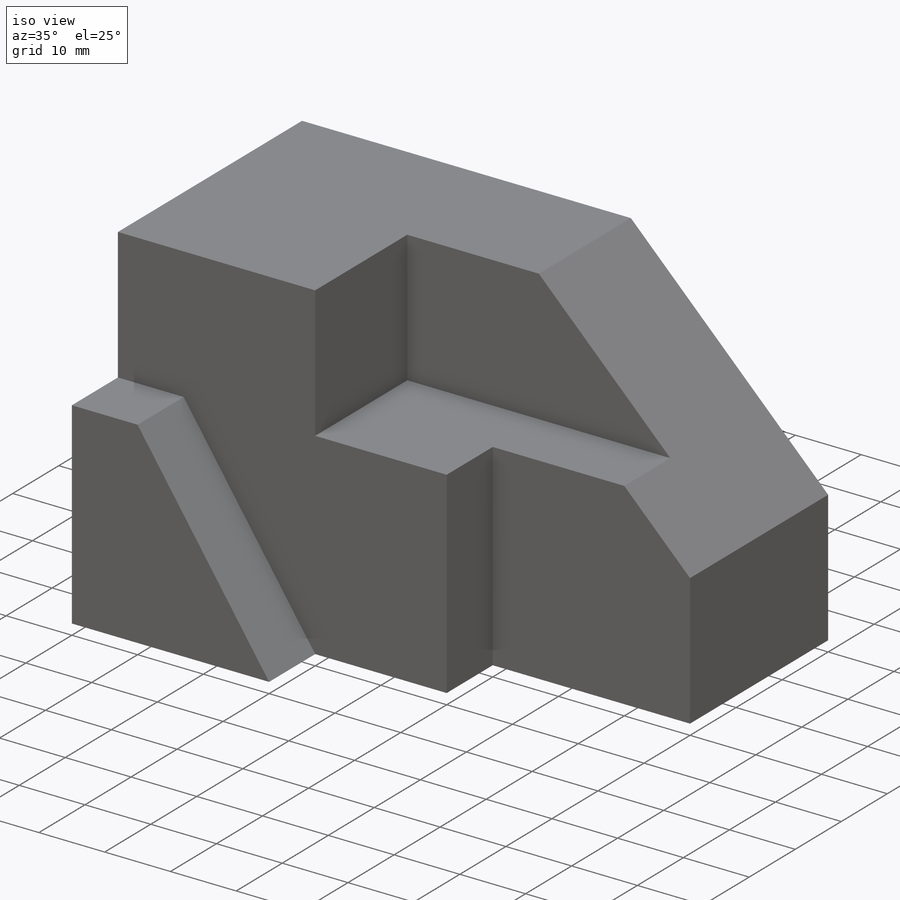
[diagram: iso view]
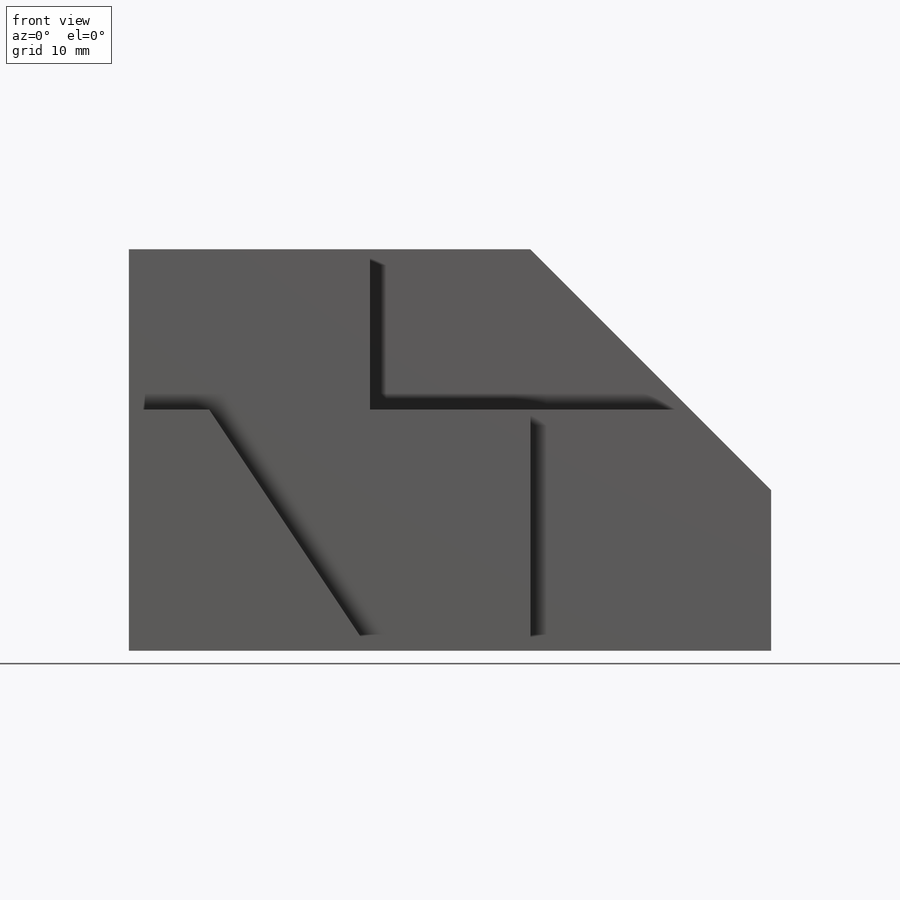
[diagram: front view]
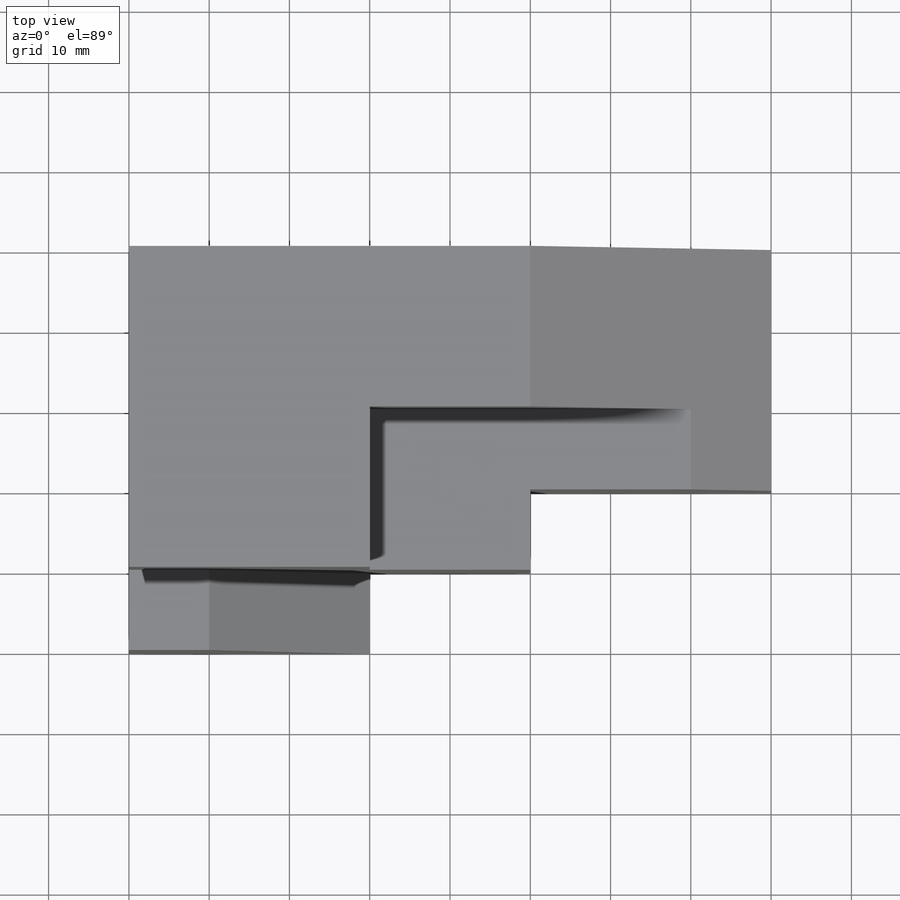
[diagram: top view]
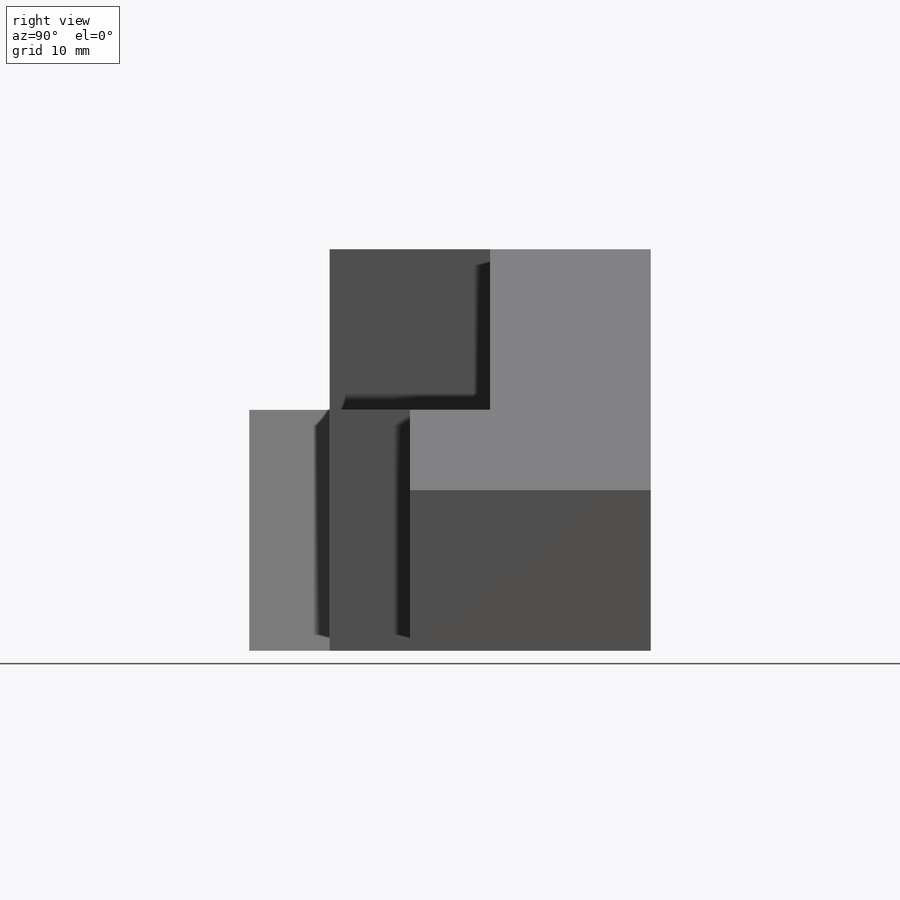
[diagram: right view]
SOLIDWORKS PART (.sldprt)
format: sldprt  version: not decoded by parser v0  size: 174,592 bytes
history: native  units: mm
features: sketch x5, cut_extrude x4, material x1, extrude x1 (+13 scaffold rows collapsed)
feature tree (24):
  scaffold x13  (default folders/planes/origin — collapsed)
  material  "Material <not specified>"
  sketch  "Sketch1"  dims[D1=80.0mm D2=50.0mm]
  extrude  "Boss-Extrude1"  Depth=50mm
  sketch  "Sketch2"  dims[D1=10.0mm D2=20.0mm D3=30.0mm]
  cut_extrude  "Cut-Extrude1"  Depth=10mm
  sketch  "Sketch3"  dims[D1=30.0mm D2=30.0mm]
  cut_extrude  "Cut-Extrude2"  Depth=56mm
  sketch  "Sketch4"  dims[D1=10.0mm D2=30.0mm]
  cut_extrude  "Cut-Extrude3"  Depth=56mm
  sketch  "Sketch5"  dims[D1=30.0mm D2=20.0mm D3=0.0mm D4=~82.141205mm]
  cut_extrude  "Cut-Extrude4"  Depth=20mm
decode coverage: 10 of 10 modeling features carry decoded parameters
note: ~ marks probable driven/reference dimensions
note: suppression state not decoded; provenance and decode notes live in map.json
